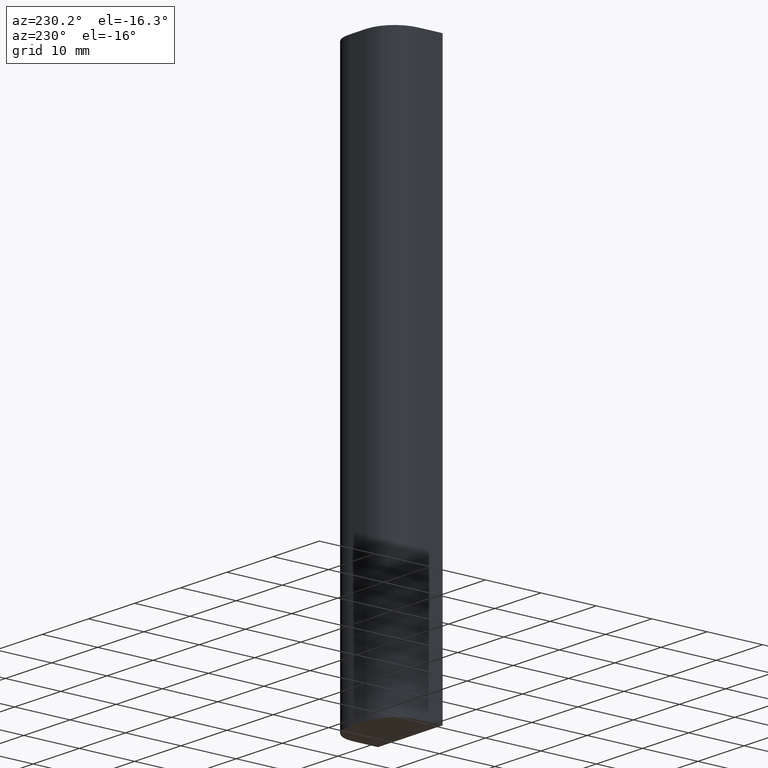
[diagram: clean part render]
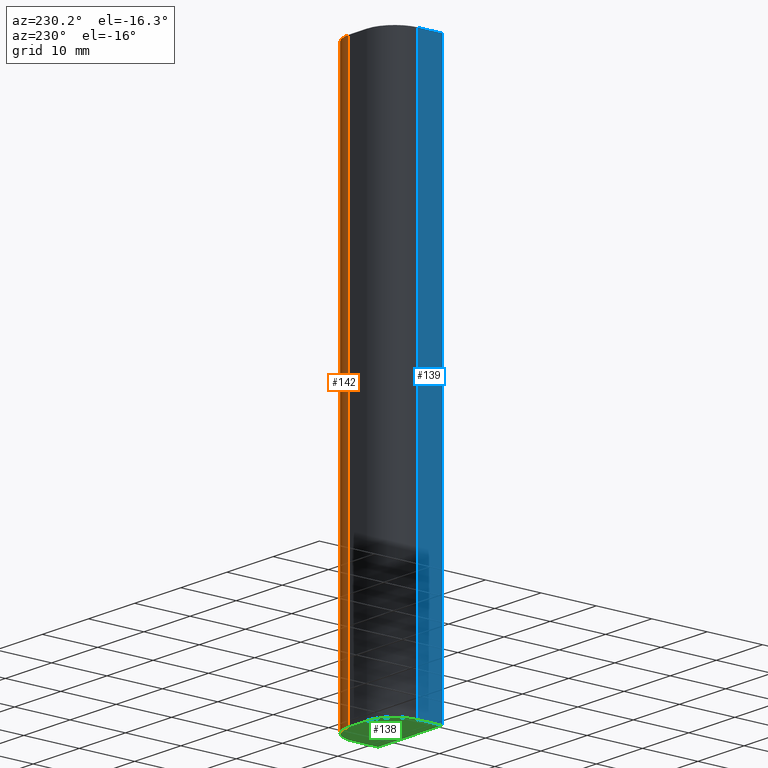
[diagram: same view with three faces highlighted in distinct colors, each labeled with its STEP entity id]
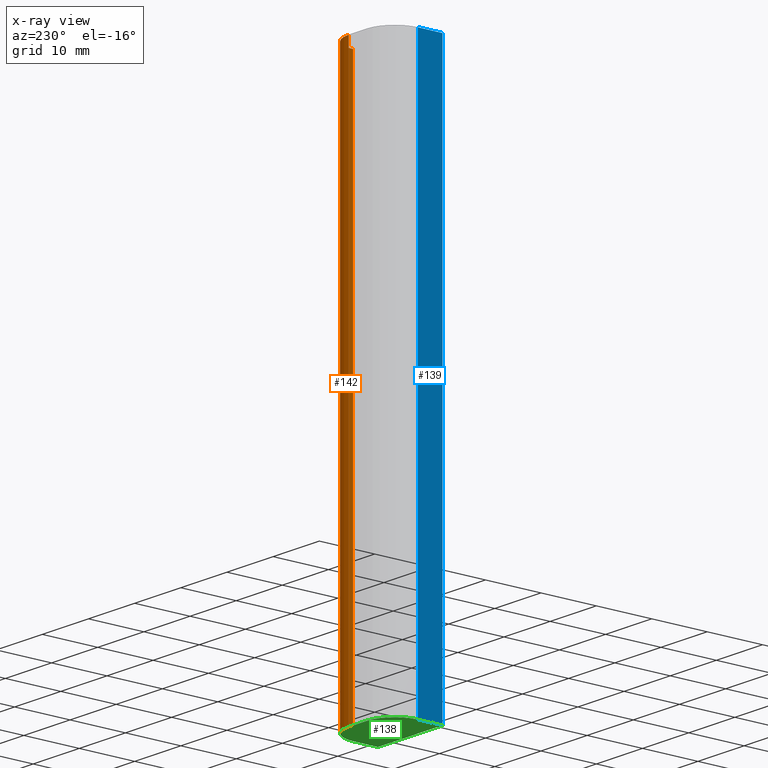
[diagram: x-ray of the same camera — body ghosted, the three highlighted faces saturated]
A machine part, auxiliary view with three faces highlighted in distinct colors.
The next image is the same camera in x-ray (body ghosted, the three faces saturated) — at least one of them is partly hidden behind the body in this view.
Their STEP definitions:

[orange] entity #142 — the highlighted cylindrical surface (edge-blend (fillet) strip) has radius 5 mm, axis along (0, 0, 1).
#17=CYLINDRICAL_SURFACE('',#173,5.);
#22=FACE_OUTER_BOUND('',#30,.T.);
#30=EDGE_LOOP('',(#114,#115,#116,#117));
#35=CIRCLE('',#168,5.);
#37=CIRCLE('',#174,5.);
#47=LINE('',#245,#61);
#48=LINE('',#249,#62);
#61=VECTOR('',#203,10.);
#62=VECTOR('',#208,10.);
#67=VERTEX_POINT('',#221);
#71=VERTEX_POINT('',#229);
#75=VERTEX_POINT('',#243);
#76=VERTEX_POINT('',#247);
#83=EDGE_CURVE('',#67,#71,#35,.T.);
#90=EDGE_CURVE('',#71,#75,#47,.T.);
#91=EDGE_CURVE('',#75,#76,#37,.T.);
#92=EDGE_CURVE('',#67,#76,#48,.T.);
#114=ORIENTED_EDGE('',*,*,#91,.T.);
#115=ORIENTED_EDGE('',*,*,#92,.F.);
#116=ORIENTED_EDGE('',*,*,#83,.T.);
#117=ORIENTED_EDGE('',*,*,#90,.T.);
#142=ADVANCED_FACE('',(#22),#17,.T.);
#168=AXIS2_PLACEMENT_3D('',#231,#188,#189);
#173=AXIS2_PLACEMENT_3D('',#246,#204,#205);
#174=AXIS2_PLACEMENT_3D('',#248,#206,#207);
#188=DIRECTION('center_axis',(0.,0.,1.));
#189=DIRECTION('ref_axis',(1.,2.22044604925031E-16,0.));
#203=DIRECTION('',(0.,0.,1.));
#204=DIRECTION('center_axis',(0.,0.,1.));
#205=DIRECTION('ref_axis',(1.,2.22044604925031E-16,0.));
#206=DIRECTION('center_axis',(0.,0.,-1.));
#207=DIRECTION('ref_axis',(1.,2.22044604925031E-16,0.));
#208=DIRECTION('',(0.,0.,1.));
#221=CARTESIAN_POINT('',(7.,-0.25,-50.));
#229=CARTESIAN_POINT('',(2.,4.75,-50.));
#231=CARTESIAN_POINT('Origin',(2.,-0.250000000000001,-50.));
#243=CARTESIAN_POINT('',(2.,4.75,50.));
#245=CARTESIAN_POINT('',(2.,4.75,0.));
#246=CARTESIAN_POINT('Origin',(2.,-0.250000000000001,0.));
#247=CARTESIAN_POINT('',(7.,-0.25,50.));
#248=CARTESIAN_POINT('Origin',(2.,-0.250000000000001,50.));
#249=CARTESIAN_POINT('',(7.,-0.25,0.));

[blue] entity #139 — the highlighted planar face has unit normal (-1, 0, 0).
#19=FACE_OUTER_BOUND('',#27,.T.);
#27=EDGE_LOOP('',(#102,#103,#104,#105));
#40=LINE('',#226,#54);
#42=LINE('',#235,#56);
#43=LINE('',#236,#57);
#44=LINE('',#237,#58);
#54=VECTOR('',#184,10.);
#56=VECTOR('',#192,10.);
#57=VECTOR('',#193,10.);
#58=VECTOR('',#194,10.);
#68=VERTEX_POINT('',#223);
#69=VERTEX_POINT('',#225);
#72=VERTEX_POINT('',#233);
#73=VERTEX_POINT('',#234);
#80=EDGE_CURVE('',#69,#68,#40,.T.);
#84=EDGE_CURVE('',#72,#73,#42,.T.);
#85=EDGE_CURVE('',#69,#73,#43,.T.);
#86=EDGE_CURVE('',#72,#68,#44,.T.);
#102=ORIENTED_EDGE('',*,*,#84,.T.);
#103=ORIENTED_EDGE('',*,*,#85,.F.);
#104=ORIENTED_EDGE('',*,*,#80,.T.);
#105=ORIENTED_EDGE('',*,*,#86,.F.);
#133=PLANE('',#169);
#139=ADVANCED_FACE('',(#19),#133,.T.);
#169=AXIS2_PLACEMENT_3D('',#232,#190,#191);
#184=DIRECTION('',(0.,-1.,0.));
#190=DIRECTION('center_axis',(-1.,0.,0.));
#191=DIRECTION('ref_axis',(0.,0.,1.));
#192=DIRECTION('',(0.,1.,0.));
#193=DIRECTION('',(0.,0.,1.));
#194=DIRECTION('',(0.,0.,-1.));
#223=CARTESIAN_POINT('',(-7.,-4.75,-50.));
#225=CARTESIAN_POINT('',(-7.,-0.25,-50.));
#226=CARTESIAN_POINT('',(-7.,-0.25,-50.));
#232=CARTESIAN_POINT('Origin',(-7.,-4.75,0.));
#233=CARTESIAN_POINT('',(-7.,-4.75,50.));
#234=CARTESIAN_POINT('',(-7.,-0.25,50.));
#235=CARTESIAN_POINT('',(-7.,-0.25,50.));
#236=CARTESIAN_POINT('',(-7.,-0.25,0.));
#237=CARTESIAN_POINT('',(-7.,-4.75,0.));

[green] entity #138 — the highlighted planar face has unit normal (0, 0, 1).
#18=FACE_OUTER_BOUND('',#26,.T.);
#26=EDGE_LOOP('',(#96,#97,#98,#99,#100,#101));
#34=CIRCLE('',#167,5.);
#35=CIRCLE('',#168,5.);
#38=LINE('',#222,#52);
#39=LINE('',#224,#53);
#40=LINE('',#226,#54);
#41=LINE('',#230,#55);
#52=VECTOR('',#182,10.);
#53=VECTOR('',#183,10.);
#54=VECTOR('',#184,10.);
#55=VECTOR('',#187,10.);
#66=VERTEX_POINT('',#220);
#67=VERTEX_POINT('',#221);
#68=VERTEX_POINT('',#223);
#69=VERTEX_POINT('',#225);
#70=VERTEX_POINT('',#227);
#71=VERTEX_POINT('',#229);
#78=EDGE_CURVE('',#66,#67,#38,.T.);
#79=EDGE_CURVE('',#68,#66,#39,.T.);
#80=EDGE_CURVE('',#69,#68,#40,.T.);
#81=EDGE_CURVE('',#70,#69,#34,.T.);
#82=EDGE_CURVE('',#71,#70,#41,.T.);
#83=EDGE_CURVE('',#67,#71,#35,.T.);
#96=ORIENTED_EDGE('',*,*,#78,.F.);
#97=ORIENTED_EDGE('',*,*,#79,.F.);
#98=ORIENTED_EDGE('',*,*,#80,.F.);
#99=ORIENTED_EDGE('',*,*,#81,.F.);
#100=ORIENTED_EDGE('',*,*,#82,.F.);
#101=ORIENTED_EDGE('',*,*,#83,.F.);
#132=PLANE('',#166);
#138=ADVANCED_FACE('',(#18),#132,.F.);
#166=AXIS2_PLACEMENT_3D('',#219,#180,#181);
#167=AXIS2_PLACEMENT_3D('',#228,#185,#186);
#168=AXIS2_PLACEMENT_3D('',#231,#188,#189);
#180=DIRECTION('center_axis',(0.,0.,1.));
#181=DIRECTION('ref_axis',(1.,0.,0.));
#182=DIRECTION('',(-2.46716227694479E-16,1.,0.));
#183=DIRECTION('',(1.,1.98254111540206E-16,0.));
#184=DIRECTION('',(0.,-1.,0.));
#185=DIRECTION('center_axis',(0.,0.,1.));
#186=DIRECTION('ref_axis',(2.22044604925031E-16,1.,0.));
#187=DIRECTION('',(-1.,1.38777878078145E-16,0.));
#188=DIRECTION('center_axis',(0.,0.,1.));
#189=DIRECTION('ref_axis',(1.,2.22044604925031E-16,0.));
#219=CARTESIAN_POINT('Origin',(1.38777878078145E-16,-0.585276197182889,
-50.));
#220=CARTESIAN_POINT('',(7.,-4.75,-50.));
#221=CARTESIAN_POINT('',(7.,-0.25,-50.));
#222=CARTESIAN_POINT('',(7.,-4.75,-50.));
#223=CARTESIAN_POINT('',(-7.,-4.75,-50.));
#224=CARTESIAN_POINT('',(-7.,-4.75,-50.));
#225=CARTESIAN_POINT('',(-7.,-0.25,-50.));
#226=CARTESIAN_POINT('',(-7.,-0.25,-50.));
#227=CARTESIAN_POINT('',(-2.,4.75,-50.));
#228=CARTESIAN_POINT('Origin',(-2.,-0.25,-50.));
#229=CARTESIAN_POINT('',(2.,4.75,-50.));
#230=CARTESIAN_POINT('',(2.,4.75,-50.));
#231=CARTESIAN_POINT('Origin',(2.,-0.250000000000001,-50.));